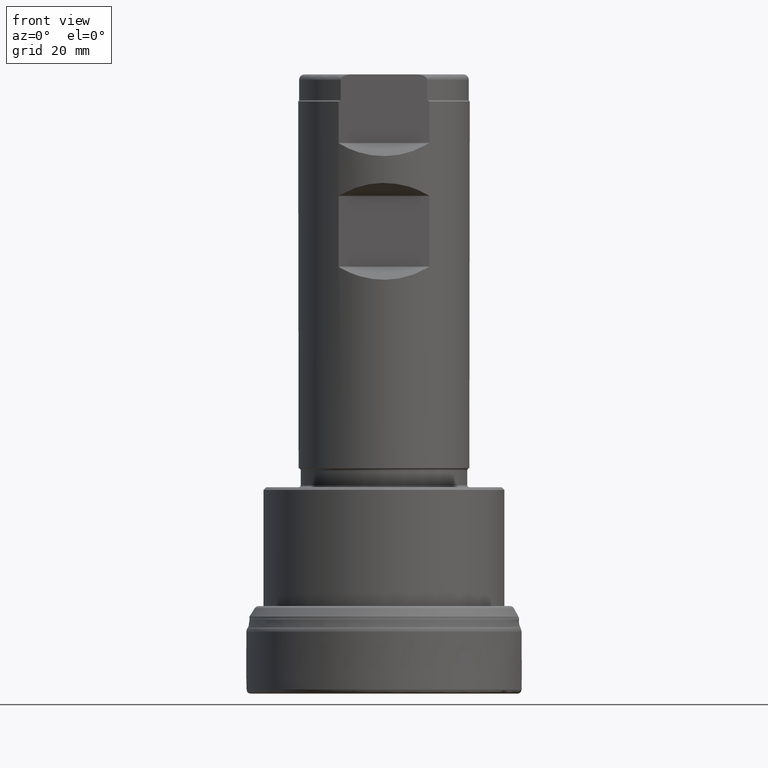
[diagram: clean part render]
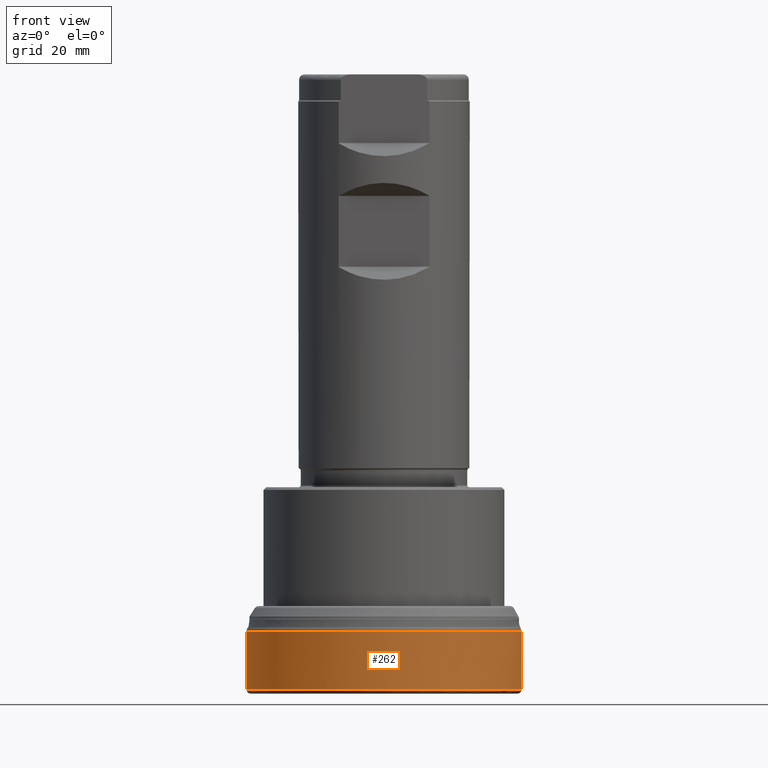
[diagram: same view with one face highlighted and labeled with its STEP entity id]
A machine part, front view. The second image highlights one B-rep face of the part: STEP entity #262.
In plain terms, the highlighted face is a SurfaceOfRevolution surface.
Its self-contained STEP definition (entity closure, byte-faithful):
#127=SURFACE_OF_REVOLUTION('',#926,#148);
#148=AXIS1_PLACEMENT('',#2011,#1242);
#262=ADVANCED_FACE('',(#420,#421),#127,.F.);
#319=CIRCLE('',#1019,25.4000000995788);
#320=CIRCLE('',#1020,25.4000004116642);
#420=FACE_BOUND('',#532,.T.);
#421=FACE_BOUND('',#533,.T.);
#532=EDGE_LOOP('',(#725));
#533=EDGE_LOOP('',(#726));
#725=ORIENTED_EDGE('',*,*,#877,.T.);
#726=ORIENTED_EDGE('',*,*,#878,.F.);
#798=VERTEX_POINT('',#1982);
#799=VERTEX_POINT('',#1996);
#877=EDGE_CURVE('',#798,#798,#319,.T.);
#878=EDGE_CURVE('',#799,#799,#320,.T.);
#926=B_SPLINE_CURVE_WITH_KNOTS('',3,(#1997,#1998,#1999,#2000,#2001,#2002,
#2003,#2004,#2005,#2006,#2007,#2008,#2009,#2010),.UNSPECIFIED.,.F.,.F.,
(4,1,1,1,1,1,1,1,1,1,1,4),(0.,0.228057409693129,0.368730032744676,0.509402655796224,
0.650075278847772,0.720411590373546,0.755579746136432,0.790747901899319,
0.861084213425093,0.931420524950867,0.966588680713754,1.),.UNSPECIFIED.);
#1019=AXIS2_PLACEMENT_3D('',#1981,#1237,#1238);
#1020=AXIS2_PLACEMENT_3D('',#1995,#1240,#1241);
#1237=DIRECTION('',(0.,0.,1.));
#1238=DIRECTION('',(1.,0.,0.));
#1240=DIRECTION('',(0.,0.,1.));
#1241=DIRECTION('',(1.,0.,0.));
#1242=DIRECTION('',(0.,0.,1.));
#1981=CARTESIAN_POINT('',(0.,0.,0.764693681134589));
#1982=CARTESIAN_POINT('',(25.4000000995788,0.,0.764693681134589));
#1995=CARTESIAN_POINT('',(0.,0.,11.4147294506144));
#1996=CARTESIAN_POINT('',(25.4000004116642,0.,11.4147294506144));
#1997=CARTESIAN_POINT('',(25.3987007437917,-0.256905677852421,11.414730244103));
#1998=CARTESIAN_POINT('',(25.4116405004979,-0.472914942111971,10.608453990237));
#1999=CARTESIAN_POINT('',(25.4218125537598,-0.822215871788492,9.30468264176088));
#2000=CARTESIAN_POINT('',(25.4121763335693,-1.3048772706921,7.50356165262844));
#2001=CARTESIAN_POINT('',(25.3907104424893,-1.70467240522882,6.01152019209799));
#2002=CARTESIAN_POINT('',(25.362828867653,-2.03766089119683,4.7682918416893));
#2003=CARTESIAN_POINT('',(25.3383833251997,-2.27112437026084,3.89827184826197));
#2004=CARTESIAN_POINT('',(25.3230110053429,-2.40382606496117,3.40095046263407));
#2005=CARTESIAN_POINT('',(25.3071095653403,-2.52519404622458,2.9007462219316));
#2006=CARTESIAN_POINT('',(25.2863399367404,-2.65952061310056,2.27144973986185));
#2007=CARTESIAN_POINT('',(25.2648815768674,-2.7690968546968,1.63742804949039));
#2008=CARTESIAN_POINT('',(25.2478193180493,-2.84006365038179,1.13417013068239));
#2009=CARTESIAN_POINT('',(25.2391234130054,-2.87501002327862,0.885730276898748));
#2010=CARTESIAN_POINT('',(25.2348208127163,-2.89202759473382,0.764693681134589));
#2011=CARTESIAN_POINT('',(0.,0.,0.));